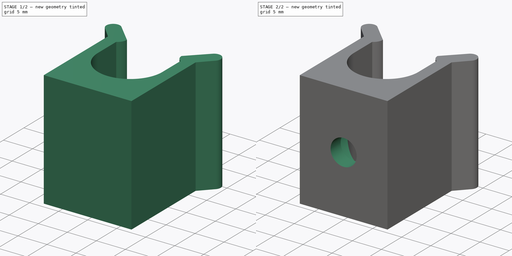
[diagram: build sequence overview — one tinted view per stage of 2, left to right]
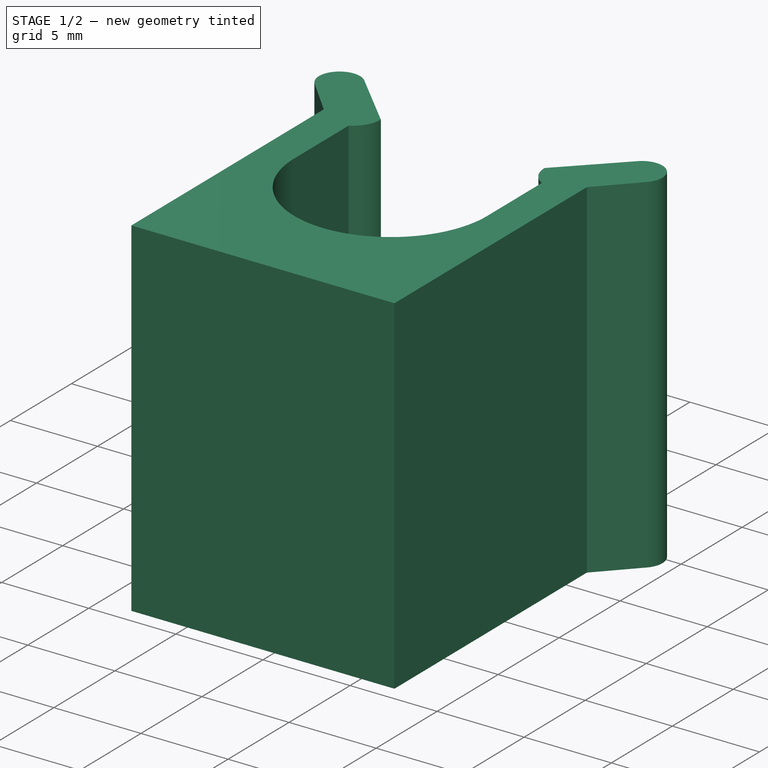
[diagram: stage 1 of 2 — iso view after this stage's code; geometry added in this stage tinted green]
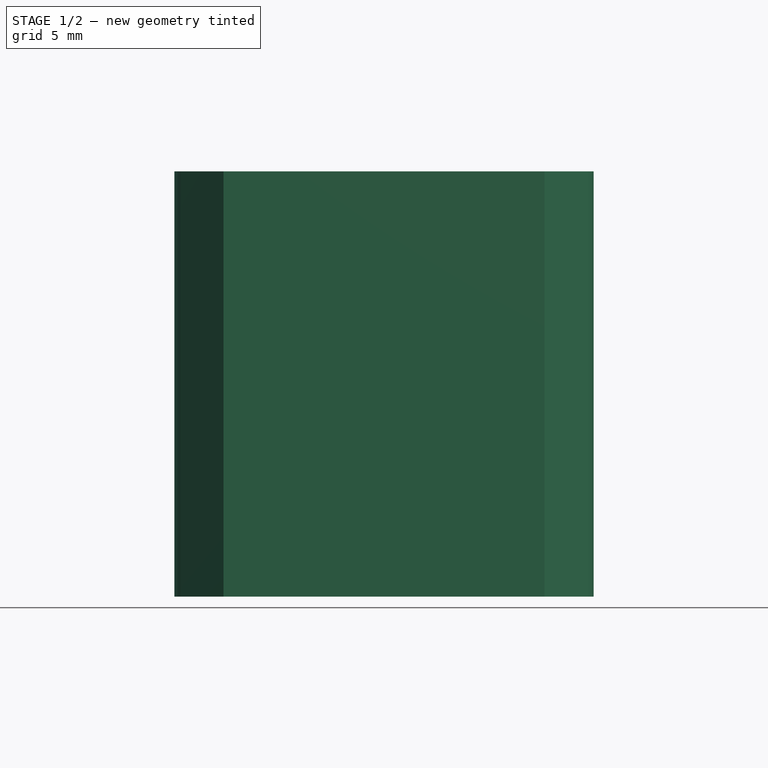
[diagram: stage 1 of 2 — front view after this stage's code; geometry added in this stage tinted green]
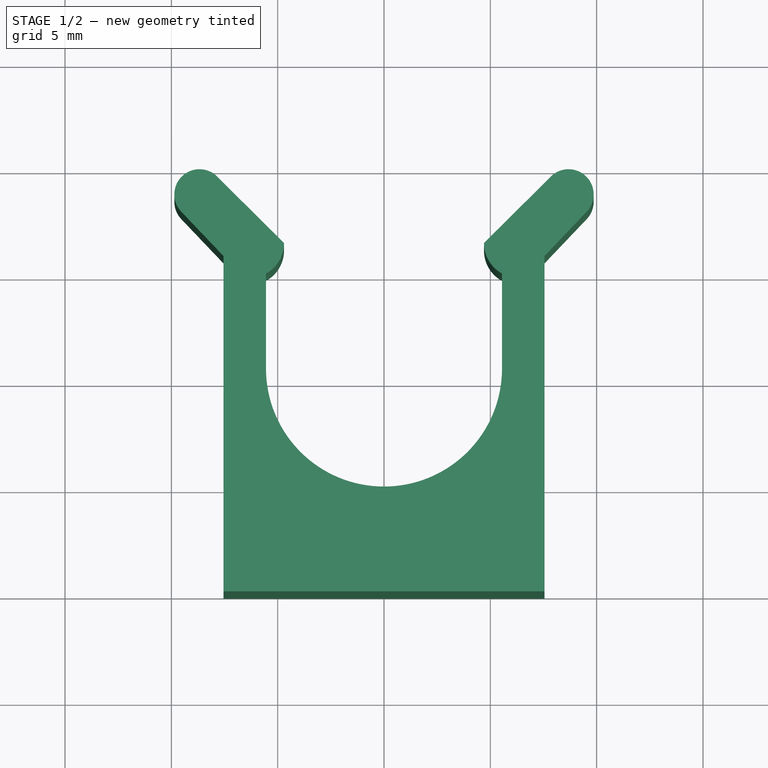
[diagram: stage 1 of 2 — top view after this stage's code; geometry added in this stage tinted green]
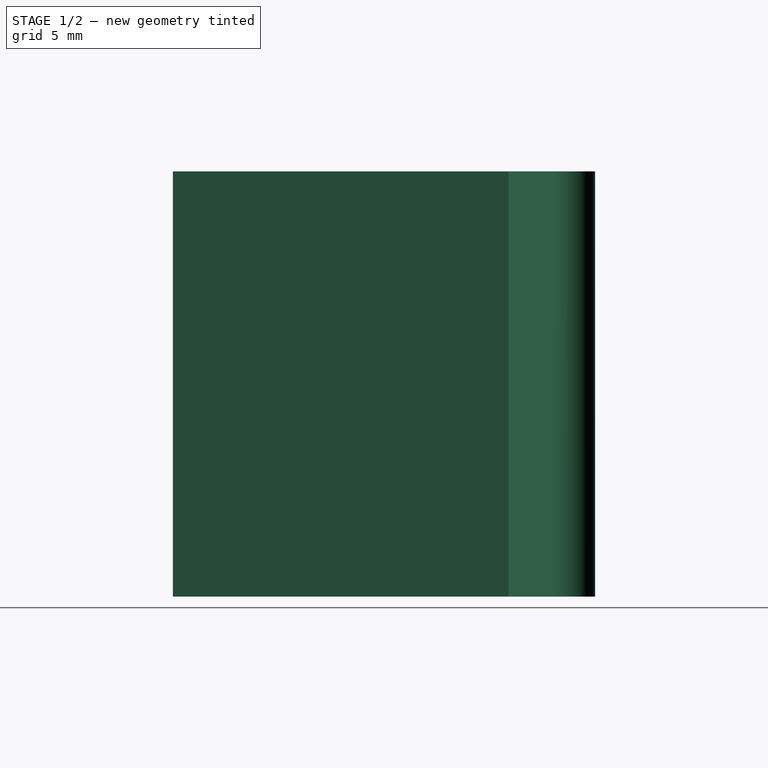
[diagram: stage 1 of 2 — right view after this stage's code; geometry added in this stage tinted green]
FCSTD DOCUMENT  (FreeCAD 1.0RUnknown)
Label: window-lock-retainer-ask
License: All rights reserved
LicenseURL: https://en.wikipedia.org/wiki/All_rights_reserved
objects: Sketcher::SketchObject×2, Image::ImagePlane×1, PartDesign::Pad×1, PartDesign::Mirrored×1, PartDesign::Hole×1, PartDesign::Body×1
note: 13 computed .brp shape members not serialized (recipe doc carries the construction recipe); baked Part::Feature solids carry a one-line shape summary decoded from their .brp

FEATURE [Image::ImagePlane] windows_lock_retainer  label="windows-lock-retainer"
  Placement = pos=(-0.990388,12.0191,0) rot=(0,0,-1;0.017453rad)
  XSize = 29.2237
  YSize = 51.9533
FEATURE [Sketcher::SketchObject] Sketch
  ArcFitTolerance = 1e-06
  FullyConstrained = false
  MakeInternals = false
  sketch-geometry (10):
    g0: LineSegment StartX=0 StartY=0 StartZ=0 EndX=-7.55 EndY=0 EndZ=0
    g1: LineSegment StartX=-7.55 StartY=0 StartZ=0 EndX=-7.55 EndY=15.7735 EndZ=0
    g2: LineSegment StartX=-7.55 StartY=15.7735 StartZ=0 EndX=-9.50798 EndY=17.8304 EndZ=0
    g3: LineSegment StartX=-7.90531 StartY=19.57 StartZ=0 EndX=-4.7 EndY=16.3784 EndZ=0
    g4: LineSegment StartX=-5.55 StartY=10.48 StartZ=0 EndX=-5.55 EndY=14.9484 EndZ=0
    g5: ArcOfCircle CenterX=7e-16 CenterY=10.48 CenterZ=0 NormalX=0 NormalY=0 NormalZ=1 AngleXU=0 Radius=5.55 StartAngle=3.14159 EndAngle=4.71239
    g6: LineSegment StartX=0 StartY=0 StartZ=0 EndX=-3e-16 EndY=4.93 EndZ=0
    g7: ArcOfCircle CenterX=-6.3327 CenterY=16.3813 CenterZ=0 NormalX=0 NormalY=0 NormalZ=1 AngleXU=0 Radius=1.6327 StartAngle=5.21235 EndAngle=6.28138
    g8: LineSegment [constr] StartX=-3e-16 StartY=4.93 StartZ=0 EndX=-15.2071 EndY=4.93 EndZ=0
    g9: ArcOfCircle CenterX=-8.67513 CenterY=18.6712 CenterZ=0 NormalX=0 NormalY=0 NormalZ=1 AngleXU=0 Radius=1.18344 StartAngle=0.862552 EndAngle=3.93172
  constraints (20):
    c: Coincident(g-1,g0)
    c: PointOnObject(g0,g-1)
    c: Coincident(g0,g1)
    c: Vertical(g1)
    c: Coincident(g1,g2)
    c: Vertical(g4)
    c: PointOnObject(g5,g-2)
    c: Coincident(g6,g0)
    c: Coincident(g6,g5)
    c: Coincident(g7,g4)
    c: Coincident(g7,g3)
    c: Distance(g3,g1) = 2.85
    c: DistanceY(g6,g6) = 4.93
    c: Horizontal(g8)
    c: Tangent(g8,g5) = 1.5708
    c: Radius(g5) = 5.55
    c: Tangent(g5,g4) = 1.5708
    c: Coincident(g9,g2)
    c: Coincident(g9,g3)
    c: Distance(g4,g1) = 2
FEATURE [PartDesign::Pad] Pad
  Direction = (0,0,1)
  Length = 20
  Length2 = 10
  Profile = -> Sketch
  ReferenceAxis = -> Sketch [N_Axis]
  Refine = true
  Suppressed = false
  Type = 0
FEATURE [PartDesign::Mirrored] Mirrored
  BaseFeature = -> Pad
  MirrorPlane = -> Sketch [V_Axis]
  Originals = -> [Pad]
  Refine = true
  Suppressed = false
  TransformMode = 0
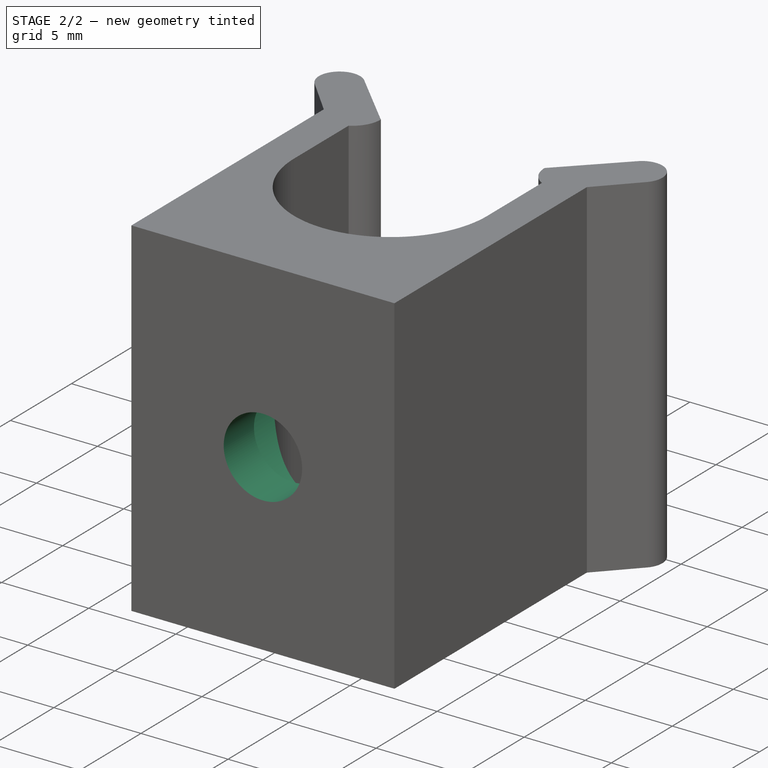
[diagram: stage 2 of 2 — iso view after this stage's code; geometry added in this stage tinted green]
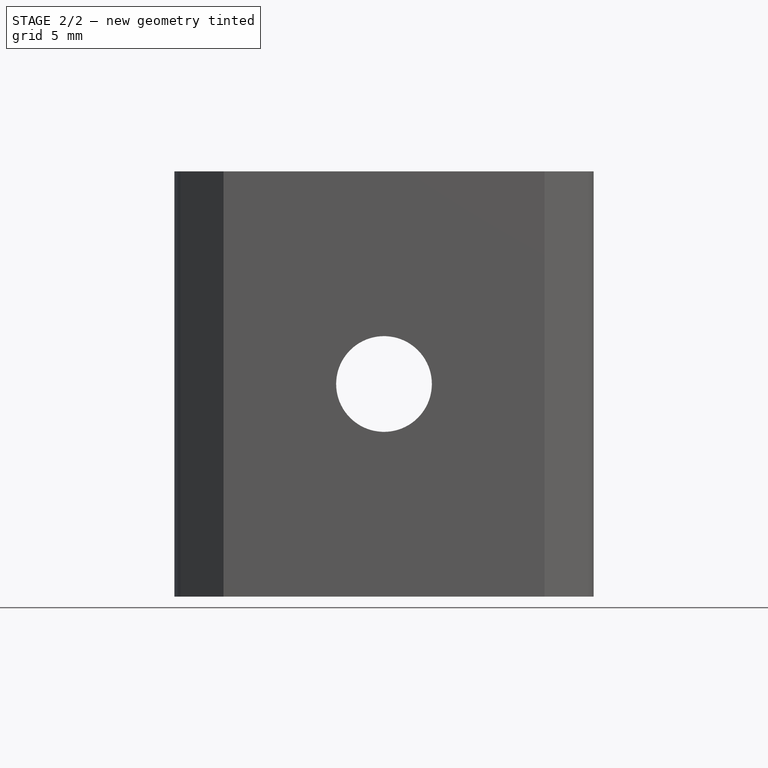
[diagram: stage 2 of 2 — front view after this stage's code; geometry added in this stage tinted green]
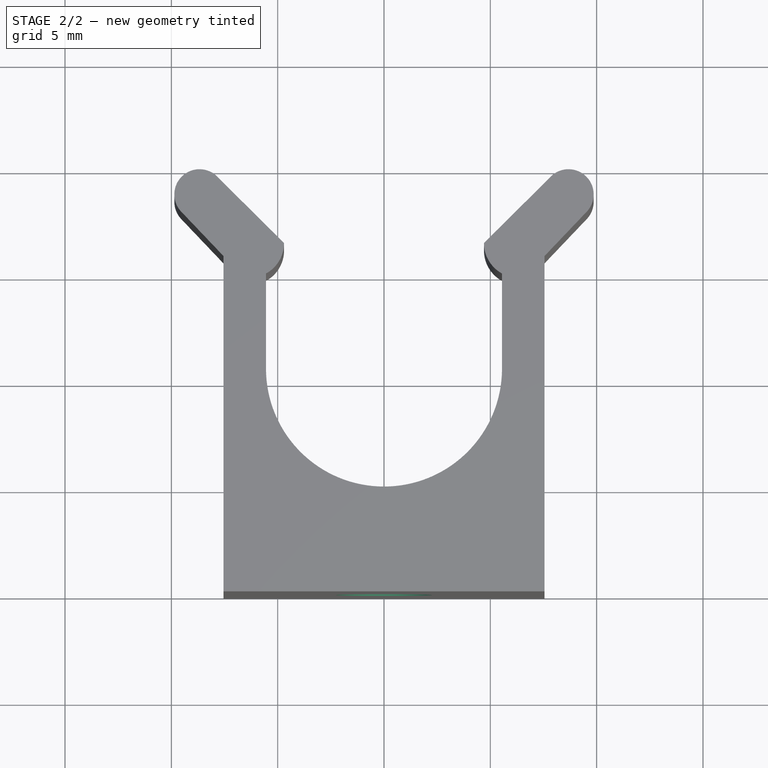
[diagram: stage 2 of 2 — top view after this stage's code; geometry added in this stage tinted green]
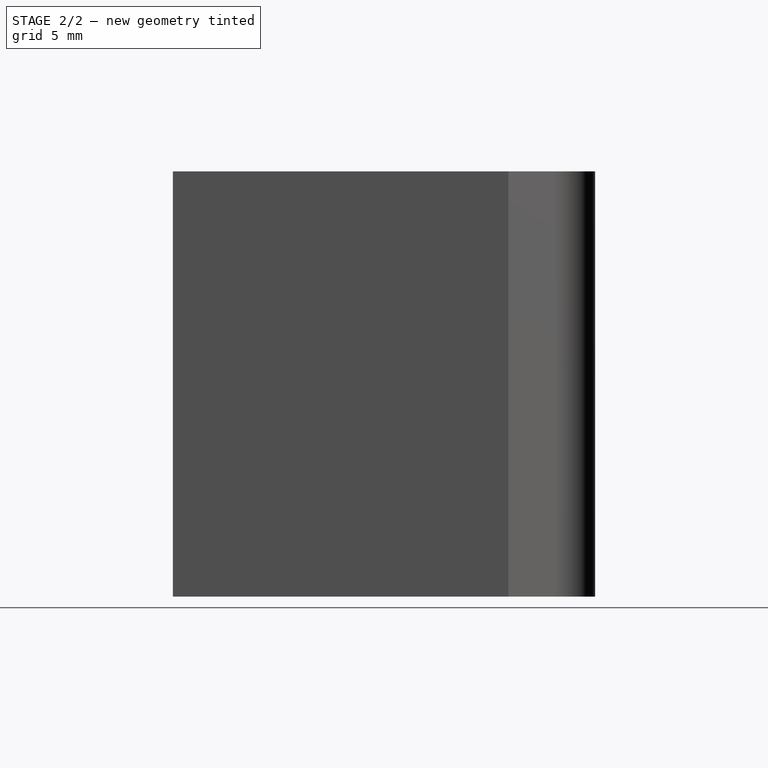
[diagram: stage 2 of 2 — right view after this stage's code; geometry added in this stage tinted green]
FEATURE [Sketcher::SketchObject] Sketch001
  ArcFitTolerance = 1e-06
  AttachmentOffset = pos=(0,0,-2) rot=(0,0,1;0rad)
  AttachmentSupport = -> [XZ_Plane,Mirrored]
  FullyConstrained = true
  MakeInternals = false
  MapMode = 53
  Placement = pos=(0,6.93,7e-16) rot=(1,0,0;1.5708rad)
  expr: Constraints[2] = <<Pad>>.Length / 2
  sketch-geometry (1):
    g0: Circle CenterX=0 CenterY=10 CenterZ=0 NormalX=0 NormalY=0 NormalZ=1 AngleXU=0 Radius=2.2
  constraints (3):
    c: PointOnObject(g0,g-2)
    c: Diameter(g0) = 4.4
    c: DistanceY(g-1,g0) = 10
FEATURE [PartDesign::Hole] Hole
  BaseFeature = -> Mirrored
  CustomThreadClearance = 0
  Depth = 69.4763
  DepthType = 1
  Diameter = 4.5
  DrillForDepth = false
  DrillPoint = 1
  DrillPointAngle = 118
  HoleCutCountersinkAngle = 90
  HoleCutCustomValues = false
  HoleCutDepth = 2.5
  HoleCutDiameter = 8.4
  HoleCutType = 3
  ModelThread = false
  Profile = -> Sketch001
  Refine = true
  Reversed = true
  Suppressed = false
  Tapered = false
  TaperedAngle = 90
  ThreadClass = 0
  ThreadDepth = 69.4763
  ThreadDepthType = 0
  ThreadDirection = 0
  ThreadFit = 0
  ThreadSize = 0
  ThreadType = 0
  Threaded = false
  UseCustomThreadClearance = false
FEATURE [PartDesign::Body] Body
  AllowCompound = false
  Group = -> [Sketch,Pad,Mirrored,Sketch001,Hole]
  Origin = -> Origin
  Tip = -> Hole
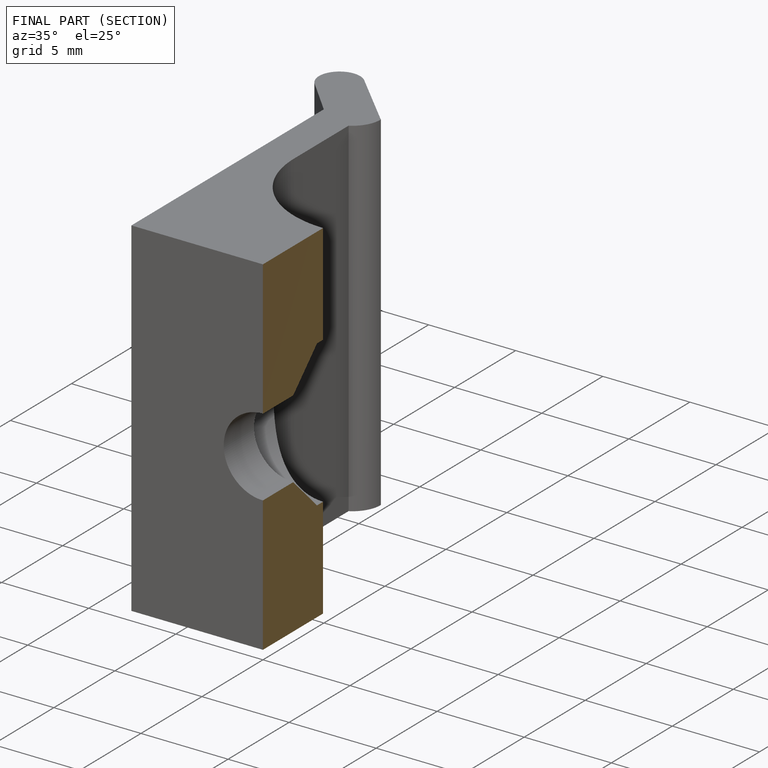
[diagram: finished part — half-section view (interior)]
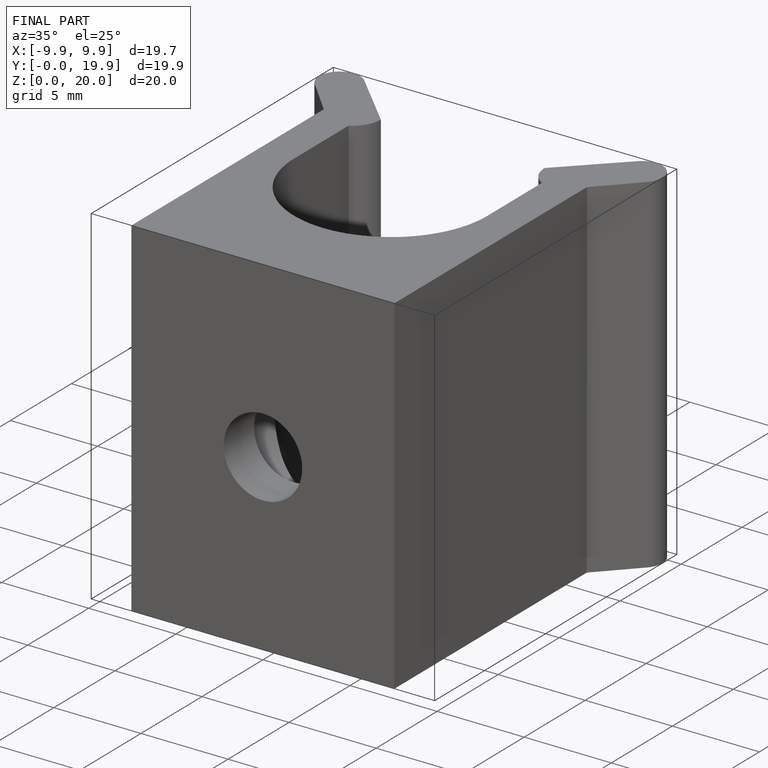
[diagram: finished part — iso view with bounding-box wireframe]
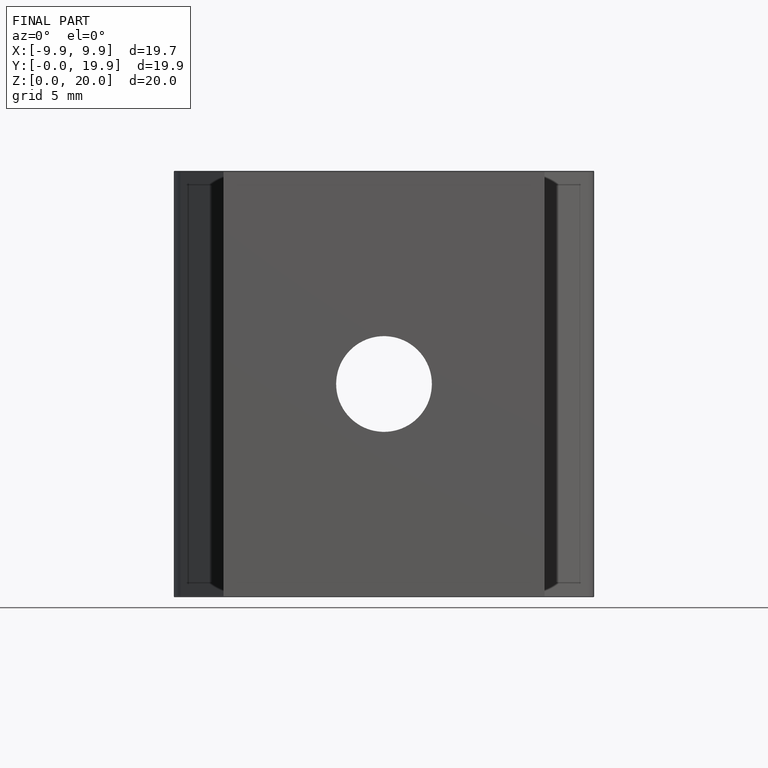
[diagram: finished part — front view with bounding-box wireframe]
